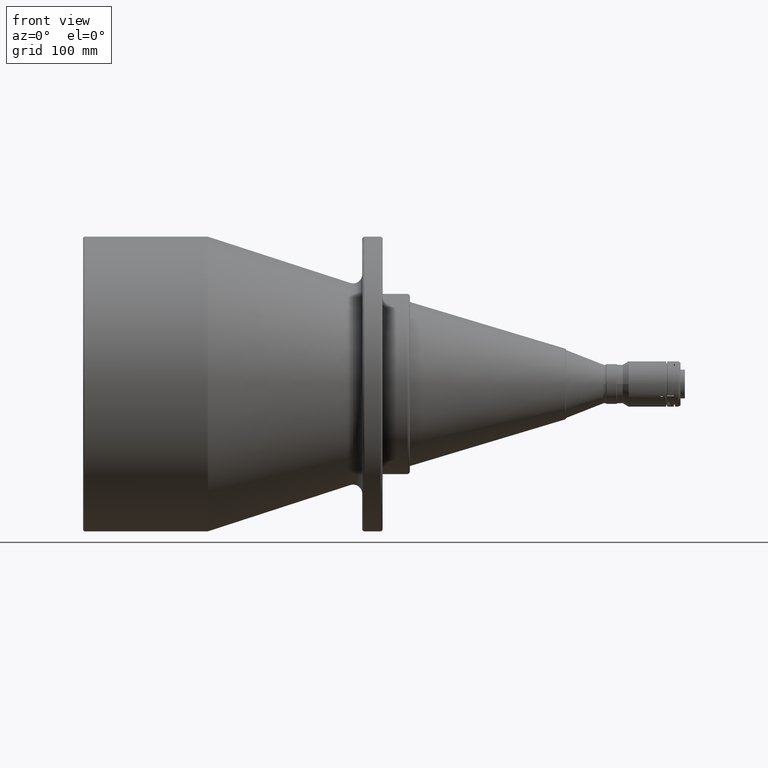
[diagram: clean part render]
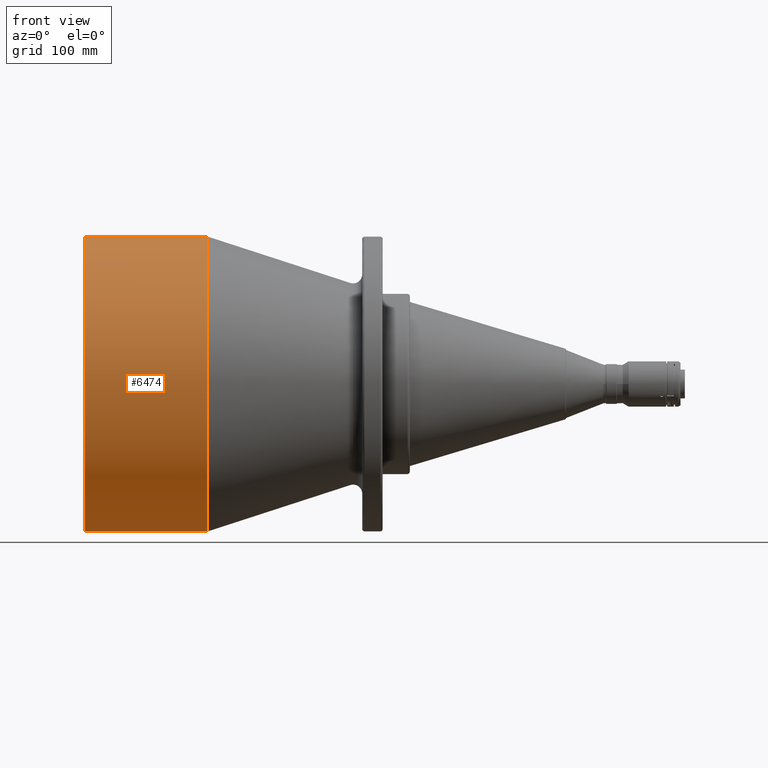
[diagram: same view with one face highlighted and labeled with its STEP entity id]
A machine part, front view. The second image highlights one B-rep face of the part: STEP entity #6474.
In plain terms, the highlighted cylindrical surface (partial cylindrical patch) has radius 130 mm, axis along (-1, 0, 0).
Its self-contained STEP definition (entity closure, byte-faithful):
#341 = CARTESIAN_POINT ( 'NONE',  ( 0.9999999999998898700, 1.592040838891559500E-014, -130.0000000000000000 ) ) ;
#400 = CARTESIAN_POINT ( 'NONE',  ( 110.0000000000000000, 0.0000000000000000000, 130.0000000000000000 ) ) ;
#434 = EDGE_CURVE ( 'NONE', #4613, #4044, #5692, .T. ) ;
#1049 = CARTESIAN_POINT ( 'NONE',  ( 110.0000000000000000, 0.0000000000000000000, 0.0000000000000000000 ) ) ;
#1147 = DIRECTION ( 'NONE',  ( -1.000000000000000000, 0.0000000000000000000, 0.0000000000000000000 ) ) ;
#1364 = DIRECTION ( 'NONE',  ( 8.473456978809788300E-016, 0.0000000000000000000, -1.000000000000000000 ) ) ;
#1494 = EDGE_CURVE ( 'NONE', #4613, #3445, #4763, .T. ) ;
#1554 = ORIENTED_EDGE ( 'NONE', *, *, #434, .T. ) ;
#1643 = AXIS2_PLACEMENT_3D ( 'NONE', #4943, #5455, #1364 ) ;
#1748 = CARTESIAN_POINT ( 'NONE',  ( 0.9999999999998898700, 0.0000000000000000000, 130.0000000000000000 ) ) ;
#1874 = VERTEX_POINT ( 'NONE', #341 ) ;
#2310 = EDGE_CURVE ( 'NONE', #3445, #1874, #6140, .T. ) ;
#2561 = AXIS2_PLACEMENT_3D ( 'NONE', #1049, #5675, #4641 ) ;
#2958 = CARTESIAN_POINT ( 'NONE',  ( 110.0000000000000000, 0.0000000000000000000, 0.0000000000000000000 ) ) ;
#2985 = DIRECTION ( 'NONE',  ( -1.000000000000000000, 0.0000000000000000000, 0.0000000000000000000 ) ) ;
#3060 = FACE_OUTER_BOUND ( 'NONE', #6349, .T. ) ;
#3445 = VERTEX_POINT ( 'NONE', #4170 ) ;
#3556 = ORIENTED_EDGE ( 'NONE', *, *, #4132, .T. ) ;
#3933 = VECTOR ( 'NONE', #1147, 1000.000000000000000 ) ;
#4044 = VERTEX_POINT ( 'NONE', #1748 ) ;
#4109 = ORIENTED_EDGE ( 'NONE', *, *, #2310, .F. ) ;
#4132 = EDGE_CURVE ( 'NONE', #4044, #1874, #5146, .T. ) ;
#4170 = CARTESIAN_POINT ( 'NONE',  ( 109.9999999999123500, -3.199613484839166100E-008, -130.0000000000000000 ) ) ;
#4422 = CYLINDRICAL_SURFACE ( 'NONE', #5341, 130.0000000000000000 ) ;
#4613 = VERTEX_POINT ( 'NONE', #4760 ) ;
#4641 = DIRECTION ( 'NONE',  ( 0.0000000000000000000, 0.0000000000000000000, 1.000000000000000000 ) ) ;
#4760 = CARTESIAN_POINT ( 'NONE',  ( 109.9999999999561700, -9.338537356588236200E-009, 130.0000000000000000 ) ) ;
#4763 = CIRCLE ( 'NONE', #2561, 130.0000000000000000 ) ;
#4938 = ORIENTED_EDGE ( 'NONE', *, *, #1494, .F. ) ;
#4943 = CARTESIAN_POINT ( 'NONE',  ( 0.9999999999998898700, 0.0000000000000000000, 0.0000000000000000000 ) ) ;
#5040 = VECTOR ( 'NONE', #2985, 1000.000000000000000 ) ;
#5146 = CIRCLE ( 'NONE', #1643, 130.0000000000000000 ) ;
#5341 = AXIS2_PLACEMENT_3D ( 'NONE', #2958, #6597, #6086 ) ;
#5455 = DIRECTION ( 'NONE',  ( 1.000000000000000000, 0.0000000000000000000, 0.0000000000000000000 ) ) ;
#5675 = DIRECTION ( 'NONE',  ( 1.000000000000000000, -0.0000000000000000000, -0.0000000000000000000 ) ) ;
#5692 = LINE ( 'NONE', #400, #5040 ) ;
#6086 = DIRECTION ( 'NONE',  ( 0.0000000000000000000, 0.0000000000000000000, 1.000000000000000000 ) ) ;
#6140 = LINE ( 'NONE', #6285, #3933 ) ;
#6285 = CARTESIAN_POINT ( 'NONE',  ( 110.0000000000000000, 1.592040838891559500E-014, -130.0000000000000000 ) ) ;
#6349 = EDGE_LOOP ( 'NONE', ( #4109, #4938, #1554, #3556 ) ) ;
#6474 = ADVANCED_FACE ( 'NONE', ( #3060 ), #4422, .T. ) ;
#6597 = DIRECTION ( 'NONE',  ( -1.000000000000000000, 0.0000000000000000000, 0.0000000000000000000 ) ) ;